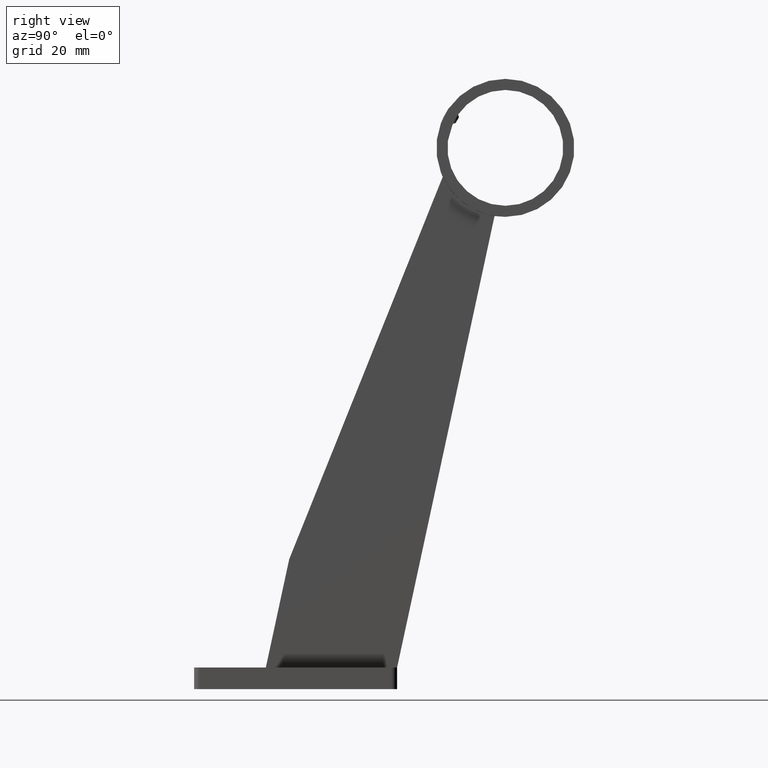
[diagram: clean part render]
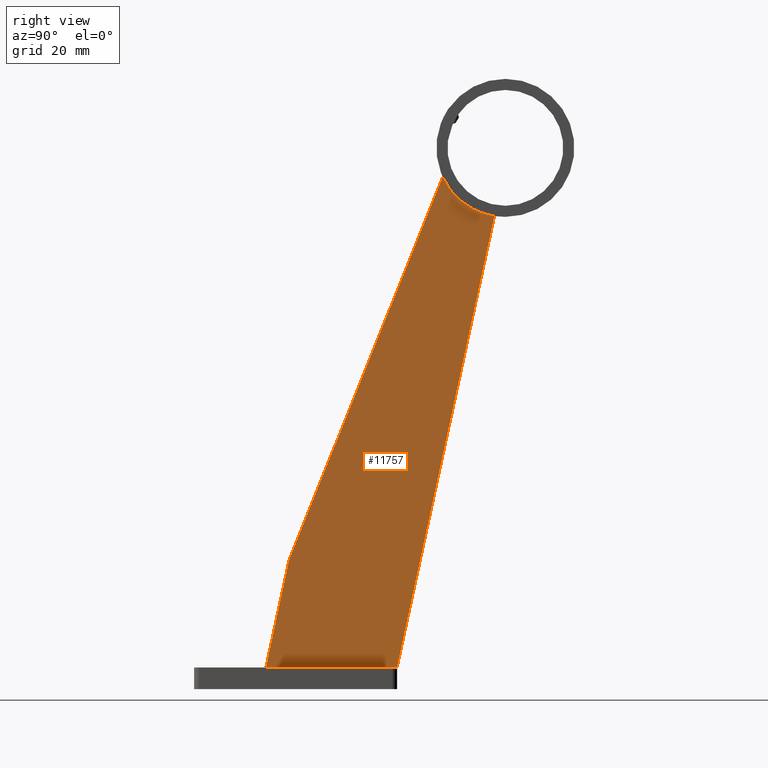
[diagram: same view with one face highlighted and labeled with its STEP entity id]
A machine part, right view. The second image highlights one B-rep face of the part: STEP entity #11757.
In plain terms, the highlighted planar face has unit normal (1, 0, 0).
Its self-contained STEP definition (entity closure, byte-faithful):
#112 = CARTESIAN_POINT ( 'NONE',  ( 3.000000000000000000, -12.16012668210152015, 2.624241090030875245 ) ) ;
#251 = DIRECTION ( 'NONE',  ( 0.000000000000000000, 0.2109506823000734665, 0.9774967056911922914 ) ) ;
#458 = ORIENTED_EDGE ( 'NONE', *, *, #14692, .F. ) ;
#911 = FACE_OUTER_BOUND ( 'NONE', #1834, .T. ) ;
#979 = ORIENTED_EDGE ( 'NONE', *, *, #6766, .F. ) ;
#1834 = EDGE_LOOP ( 'NONE', ( #979, #10997, #458, #2813, #5916 ) ) ;
#2273 = CARTESIAN_POINT ( 'NONE',  ( 3.000000000000000000, 0.000000000000000000, 0.000000000000000000 ) ) ;
#2528 = CARTESIAN_POINT ( 'NONE',  ( 3.000000000000000000, 0.000000000000000000, 8.000000000000000000 ) ) ;
#2548 = CARTESIAN_POINT ( 'NONE',  ( 3.000000000000000888, 54.35731167978458700, 189.2917799185221668 ) ) ;
#2813 = ORIENTED_EDGE ( 'NONE', *, *, #11470, .F. ) ;
#3425 = CIRCLE ( 'NONE', #14699, 25.49999999999999645 ) ;
#3853 = DIRECTION ( 'NONE',  ( 0.000000000000000000, 0.3725698851488922214, 0.9280041382882627810 ) ) ;
#4205 = CARTESIAN_POINT ( 'NONE',  ( 3.000000000000000000, 77.50000000000001421, 200.0000000000000000 ) ) ;
#4759 = VERTEX_POINT ( 'NONE', #10619 ) ;
#4951 = VECTOR ( 'NONE', #3853, 1000.000000000000114 ) ;
#5229 = VERTEX_POINT ( 'NONE', #10388 ) ;
#5409 = VECTOR ( 'NONE', #11841, 1000.000000000000000 ) ;
#5684 = DIRECTION ( 'NONE',  ( 1.000000000000000000, -0.000000000000000000, 0.000000000000000000 ) ) ;
#5916 = ORIENTED_EDGE ( 'NONE', *, *, #9752, .T. ) ;
#6200 = LINE ( 'NONE', #13157, #4951 ) ;
#6712 = LINE ( 'NONE', #112, #10839 ) ;
#6766 = EDGE_CURVE ( 'NONE', #13545, #13292, #3425, .T. ) ;
#8464 = VERTEX_POINT ( 'NONE', #12672 ) ;
#9752 = EDGE_CURVE ( 'NONE', #8464, #13292, #13378, .T. ) ;
#9906 = LINE ( 'NONE', #2528, #5409 ) ;
#9948 = CARTESIAN_POINT ( 'NONE',  ( 2.999999999999999112, 73.50000000000000000, 174.8156794810739711 ) ) ;
#10055 = DIRECTION ( 'NONE',  ( 0.000000000000000000, 0.000000000000000000, -1.000000000000000000 ) ) ;
#10318 = PLANE ( 'NONE',  #11641 ) ;
#10369 = VECTOR ( 'NONE', #14382, 1000.000000000000000 ) ;
#10388 = CARTESIAN_POINT ( 'NONE',  ( 3.000000000000000000, -11.00000000000000355, 8.000000000000000000 ) ) ;
#10619 = CARTESIAN_POINT ( 'NONE',  ( 3.000000000000000000, -2.367717923881523578, 48.00000000000000711 ) ) ;
#10839 = VECTOR ( 'NONE', #251, 1000.000000000000000 ) ;
#10997 = ORIENTED_EDGE ( 'NONE', *, *, #12635, .F. ) ;
#11470 = EDGE_CURVE ( 'NONE', #8464, #5229, #9906, .T. ) ;
#11641 = AXIS2_PLACEMENT_3D ( 'NONE', #2273, #5684, #12591 ) ;
#11757 = ADVANCED_FACE ( 'NONE', ( #911 ), #10318, .T. ) ;
#11841 = DIRECTION ( 'NONE',  ( 0.000000000000000000, -1.000000000000000000, 0.000000000000000000 ) ) ;
#12114 = DIRECTION ( 'NONE',  ( 1.000000000000000000, -0.000000000000000000, 0.000000000000000000 ) ) ;
#12591 = DIRECTION ( 'NONE',  ( 0.000000000000000000, 0.000000000000000000, -1.000000000000000000 ) ) ;
#12635 = EDGE_CURVE ( 'NONE', #4759, #13545, #6200, .T. ) ;
#12672 = CARTESIAN_POINT ( 'NONE',  ( 3.000000000000000000, 37.49999999999999289, 8.000000000000001776 ) ) ;
#13157 = CARTESIAN_POINT ( 'NONE',  ( 3.000000000000000000, -18.63488594879224891, 7.481429264432456705 ) ) ;
#13292 = VERTEX_POINT ( 'NONE', #9948 ) ;
#13378 = LINE ( 'NONE', #13385, #10369 ) ;
#13385 = CARTESIAN_POINT ( 'NONE',  ( 3.000000000000000000, 34.18161408529944367, -7.376633365033234746 ) ) ;
#13545 = VERTEX_POINT ( 'NONE', #2548 ) ;
#14382 = DIRECTION ( 'NONE',  ( 0.000000000000000000, 0.2109506823000734943, 0.9774967056911922914 ) ) ;
#14692 = EDGE_CURVE ( 'NONE', #5229, #4759, #6712, .T. ) ;
#14699 = AXIS2_PLACEMENT_3D ( 'NONE', #4205, #12114, #10055 ) ;